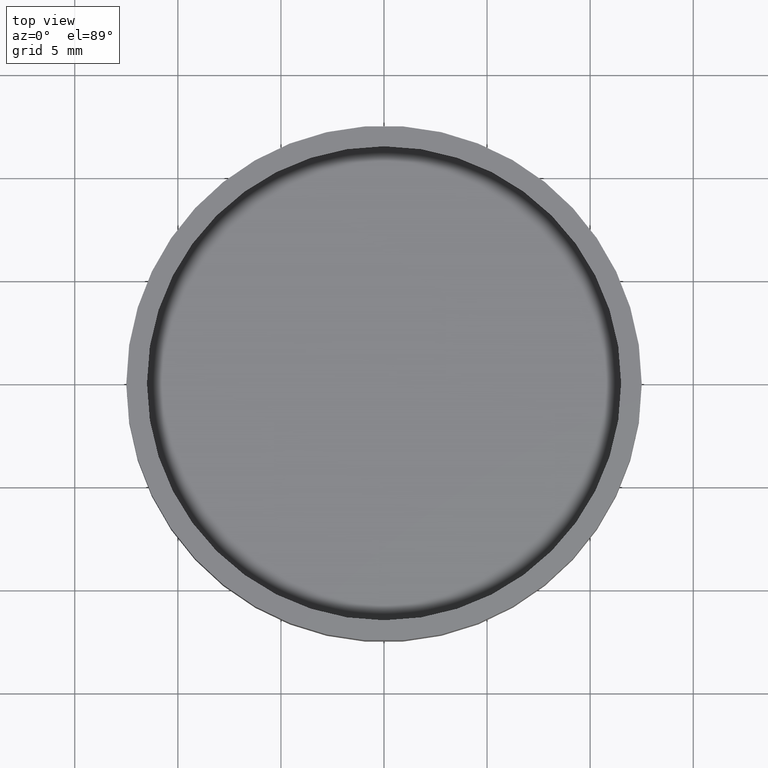
[diagram: clean part render]
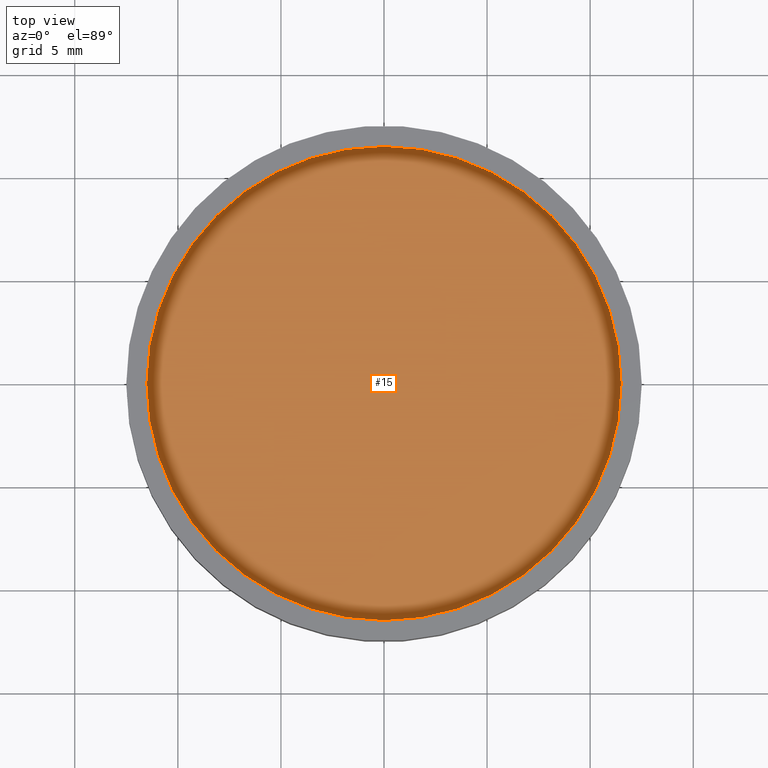
[diagram: same view with one face highlighted and labeled with its STEP entity id]
A machine part, top view. The second image highlights one B-rep face of the part: STEP entity #15.
In plain terms, the highlighted planar face has unit normal (0, 0, 1).
Its self-contained STEP definition (entity closure, byte-faithful):
#15 = ADVANCED_FACE ( 'NONE', ( #118 ), #81, .T. ) ;
#45 = CARTESIAN_POINT ( 'NONE',  ( 0.000000000000000000, 0.000000000000000000, 2.750000000000000000 ) ) ;
#52 = DIRECTION ( 'NONE',  ( 1.000000000000000000, 0.000000000000000000, -0.000000000000000000 ) ) ;
#68 = CARTESIAN_POINT ( 'NONE',  ( 0.000000000000000000, 0.000000000000000000, 2.750000000000000000 ) ) ;
#75 = CIRCLE ( 'NONE', #314, 11.50000000000000000 ) ;
#80 = AXIS2_PLACEMENT_3D ( 'NONE', #45, #276, #52 ) ;
#81 = PLANE ( 'NONE',  #80 ) ;
#99 = ORIENTED_EDGE ( 'NONE', *, *, #213, .T. ) ;
#108 = DIRECTION ( 'NONE',  ( 1.000000000000000000, 0.000000000000000000, 0.000000000000000000 ) ) ;
#111 = DIRECTION ( 'NONE',  ( 1.000000000000000000, 0.000000000000000000, 0.000000000000000000 ) ) ;
#118 = FACE_OUTER_BOUND ( 'NONE', #290, .T. ) ;
#169 = DIRECTION ( 'NONE',  ( 0.000000000000000000, 0.000000000000000000, 1.000000000000000000 ) ) ;
#176 = AXIS2_PLACEMENT_3D ( 'NONE', #68, #169, #108 ) ;
#184 = ORIENTED_EDGE ( 'NONE', *, *, #295, .T. ) ;
#213 = EDGE_CURVE ( 'NONE', #345, #350, #418, .T. ) ;
#258 = CARTESIAN_POINT ( 'NONE',  ( -11.50000000000000000, 1.408343819019456176E-15, 2.750000000000000000 ) ) ;
#276 = DIRECTION ( 'NONE',  ( 0.000000000000000000, 0.000000000000000000, 1.000000000000000000 ) ) ;
#282 = CARTESIAN_POINT ( 'NONE',  ( 11.50000000000000000, 0.000000000000000000, 2.750000000000000000 ) ) ;
#290 = EDGE_LOOP ( 'NONE', ( #184, #99 ) ) ;
#295 = EDGE_CURVE ( 'NONE', #350, #345, #75, .T. ) ;
#314 = AXIS2_PLACEMENT_3D ( 'NONE', #397, #400, #111 ) ;
#345 = VERTEX_POINT ( 'NONE', #258 ) ;
#350 = VERTEX_POINT ( 'NONE', #282 ) ;
#397 = CARTESIAN_POINT ( 'NONE',  ( 0.000000000000000000, 0.000000000000000000, 2.750000000000000000 ) ) ;
#400 = DIRECTION ( 'NONE',  ( 0.000000000000000000, 0.000000000000000000, 1.000000000000000000 ) ) ;
#418 = CIRCLE ( 'NONE', #176, 11.50000000000000000 ) ;